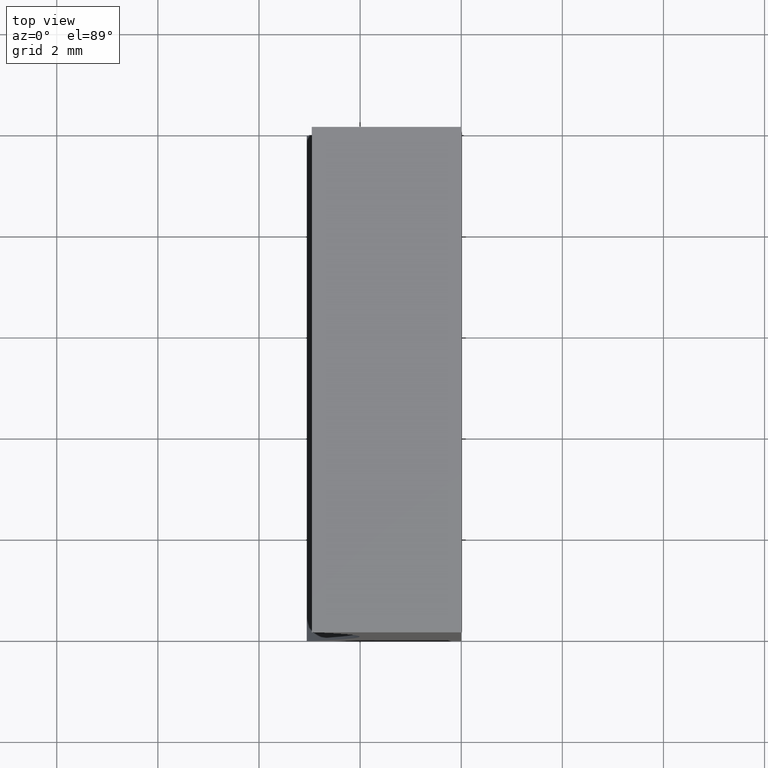
[diagram: clean part render]
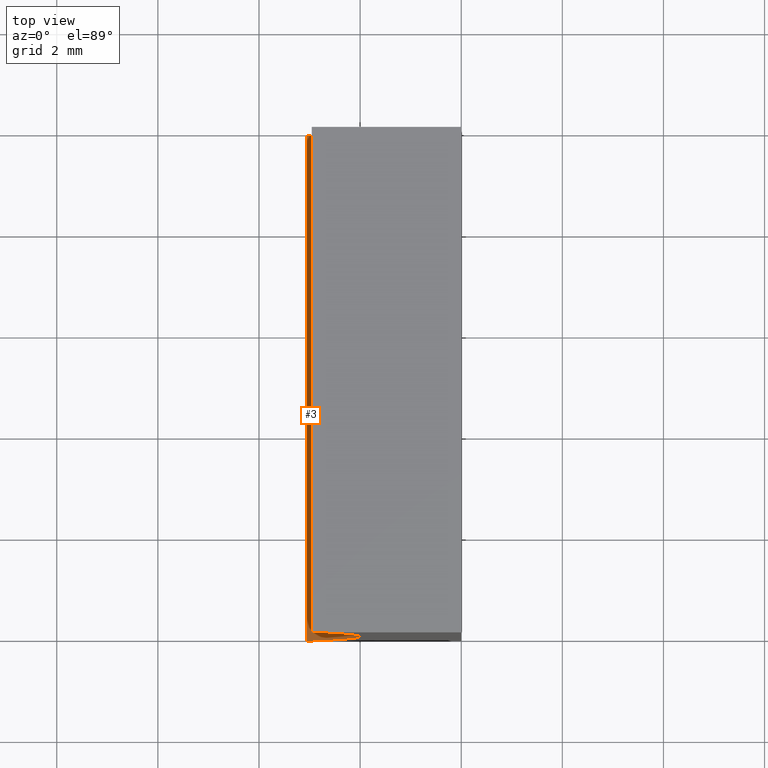
[diagram: same view with one face highlighted and labeled with its STEP entity id]
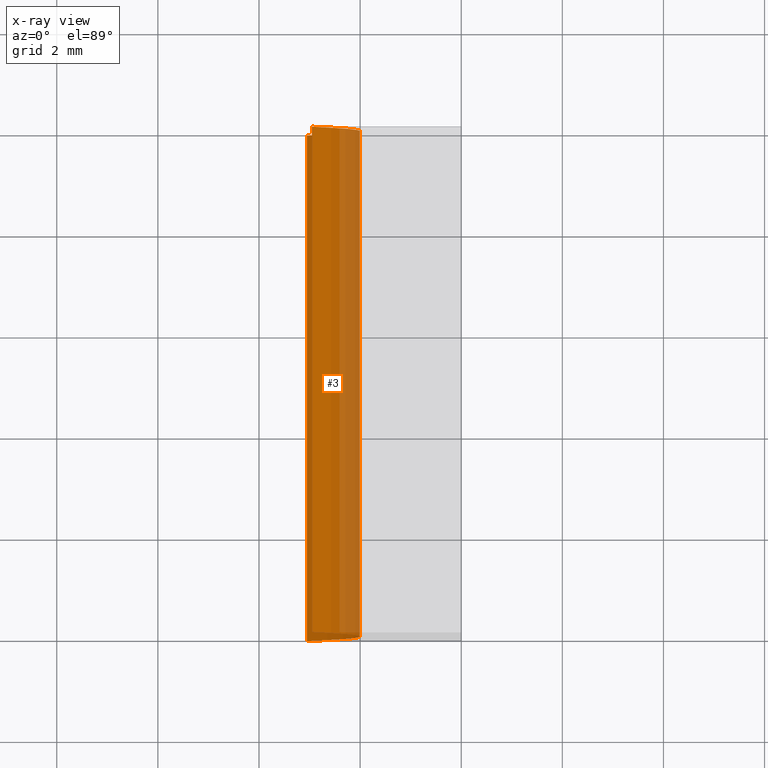
[diagram: x-ray of the same camera — body ghosted, the highlighted face saturated]
A machine part, top view. The second image highlights one B-rep face of the part: STEP entity #3.
The next image is the same camera in x-ray: the body ghosted, the highlighted face saturated — about 38% of this face is hidden behind the body in this view.
In plain terms, the highlighted cylindrical surface (partial cylindrical patch) has radius 12.93 mm, axis along (-0, -1, -0).
Its self-contained STEP definition (entity closure, byte-faithful):
#1 = DIRECTION ( 'NONE',  ( -0.0000000000000000000, -1.000000000000000000, -0.0000000000000000000 ) ) ;
#3 = ADVANCED_FACE ( 'NONE', ( #167 ), #148, .F. ) ;
#7 = DIRECTION ( 'NONE',  ( -0.0000000000000000000, -1.000000000000000000, -0.0000000000000000000 ) ) ;
#11 = VECTOR ( 'NONE', #195, 1000.000000000000000 ) ;
#12 = DIRECTION ( 'NONE',  ( -0.0000000000000000000, -1.000000000000000000, -0.0000000000000000000 ) ) ;
#17 = AXIS2_PLACEMENT_3D ( 'NONE', #102, #112, #26 ) ;
#18 = ORIENTED_EDGE ( 'NONE', *, *, #180, .F. ) ;
#22 = VERTEX_POINT ( 'NONE', #40 ) ;
#26 = DIRECTION ( 'NONE',  ( 0.0000000000000000000, 0.0000000000000000000, 1.000000000000000000 ) ) ;
#29 = CARTESIAN_POINT ( 'NONE',  ( -2.957014408104902800, 10.00000000000000000, 10.00000000000000000 ) ) ;
#31 = DIRECTION ( 'NONE',  ( 0.0000000000000000000, 0.0000000000000000000, -1.000000000000000000 ) ) ;
#40 = CARTESIAN_POINT ( 'NONE',  ( -2.957014408104902800, 10.00000000000000000, 10.00000000000000000 ) ) ;
#52 = CARTESIAN_POINT ( 'NONE',  ( -14.92935793985619200, 10.00000000000000000, 5.116569816437113600 ) ) ;
#54 = CIRCLE ( 'NONE', #58, 12.92999999999999600 ) ;
#55 = EDGE_CURVE ( 'NONE', #95, #197, #69, .T. ) ;
#57 = ORIENTED_EDGE ( 'NONE', *, *, #72, .F. ) ;
#58 = AXIS2_PLACEMENT_3D ( 'NONE', #174, #1, #110 ) ;
#62 = CARTESIAN_POINT ( 'NONE',  ( -2.957014408104902800, 0.0000000000000000000, 10.00000000000000000 ) ) ;
#69 = LINE ( 'NONE', #193, #103 ) ;
#72 = EDGE_CURVE ( 'NONE', #95, #22, #54, .T. ) ;
#87 = CIRCLE ( 'NONE', #17, 12.92999999999999600 ) ;
#95 = VERTEX_POINT ( 'NONE', #140 ) ;
#99 = ORIENTED_EDGE ( 'NONE', *, *, #137, .T. ) ;
#102 = CARTESIAN_POINT ( 'NONE',  ( -14.92935793985619200, 0.0000000000000000000, 5.116569816437113600 ) ) ;
#103 = VECTOR ( 'NONE', #12, 1000.000000000000000 ) ;
#110 = DIRECTION ( 'NONE',  ( 0.0000000000000000000, 0.0000000000000000000, 1.000000000000000000 ) ) ;
#112 = DIRECTION ( 'NONE',  ( -0.0000000000000000000, -1.000000000000000000, -0.0000000000000000000 ) ) ;
#117 = CARTESIAN_POINT ( 'NONE',  ( -3.054779492032261100, 0.0000000000000000000, 0.0000000000000000000 ) ) ;
#130 = AXIS2_PLACEMENT_3D ( 'NONE', #52, #7, #31 ) ;
#137 = EDGE_CURVE ( 'NONE', #197, #155, #87, .T. ) ;
#140 = CARTESIAN_POINT ( 'NONE',  ( -3.054779492032261100, 10.00000000000000000, 0.0000000000000000000 ) ) ;
#148 = CYLINDRICAL_SURFACE ( 'NONE', #130, 12.92999999999999600 ) ;
#150 = LINE ( 'NONE', #29, #11 ) ;
#155 = VERTEX_POINT ( 'NONE', #62 ) ;
#167 = FACE_OUTER_BOUND ( 'NONE', #175, .T. ) ;
#174 = CARTESIAN_POINT ( 'NONE',  ( -14.92935793985619200, 10.00000000000000000, 5.116569816437113600 ) ) ;
#175 = EDGE_LOOP ( 'NONE', ( #99, #18, #57, #179 ) ) ;
#179 = ORIENTED_EDGE ( 'NONE', *, *, #55, .T. ) ;
#180 = EDGE_CURVE ( 'NONE', #22, #155, #150, .T. ) ;
#193 = CARTESIAN_POINT ( 'NONE',  ( -3.054779492032261100, 10.00000000000000000, 0.0000000000000000000 ) ) ;
#195 = DIRECTION ( 'NONE',  ( -0.0000000000000000000, -1.000000000000000000, -0.0000000000000000000 ) ) ;
#197 = VERTEX_POINT ( 'NONE', #117 ) ;